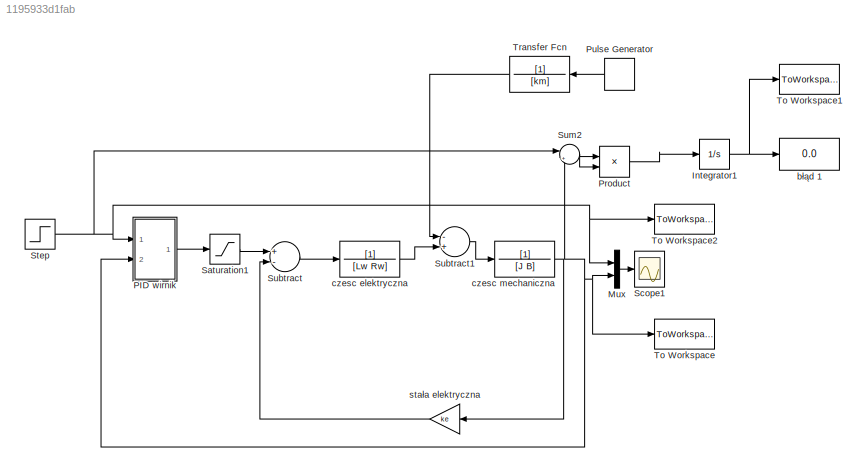
MODEL slx_1195933d1fab
KIND model
CONFIG AbsTol = auto
CONFIG FixedStep = 0.02
CONFIG MaxStep = auto
CONFIG MinStep = auto
CONFIG RelTol = 1e-3
CONFIG SampleTimeConstraint = Unconstrained
CONFIG Solver = ode3
CONFIG SolverMode = Auto
CONFIG SolverName = ode3
CONFIG StartTime = 0.0
CONFIG StopTime = 10
BLOCK [Integrator] Integrator1
  Ports = [1, 1]
BLOCK [Mux] Mux
  DisplayOption = bar
  Inputs = 2
  Ports = [2, 1]
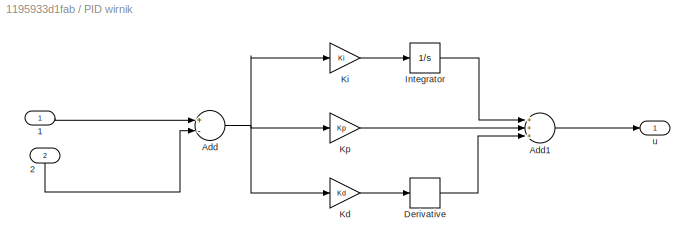
BLOCK [SubSystem] PID wirnik 
  Ports = [2, 1]
  RequestExecContextInheritance = off
BLOCK [Inport] PID wirnik /1 
  IconDisplay = Port number
BLOCK [Inport] PID wirnik /2
  IconDisplay = Port number
  Port = 2
BLOCK [Sum] PID wirnik /Add
  InputSameDT = off
  Inputs = +-
  OutDataTypeStr = Inherit: Inherit via internal rule
  Ports = [2, 1]
  SaturateOnIntegerOverflow = off
BLOCK [Sum] PID wirnik /Add1
  InputSameDT = off
  Inputs = +++
  OutDataTypeStr = Inherit: Inherit via internal rule
  Ports = [3, 1]
  SaturateOnIntegerOverflow = off
BLOCK [Derivative] PID wirnik /Derivative
BLOCK [Integrator] PID wirnik /Integrator
  Ports = [1, 1]
BLOCK [Gain] PID wirnik /Kd
  Gain = Kd
  OutDataTypeStr = Inherit: Inherit via internal rule
  ParamDataTypeStr = Inherit: Inherit via internal rule
  SaturateOnIntegerOverflow = off
BLOCK [Gain] PID wirnik /Ki 
  Gain = Ki
  OutDataTypeStr = Inherit: Inherit via internal rule
  ParamDataTypeStr = Inherit: Inherit via internal rule
  SaturateOnIntegerOverflow = off
BLOCK [Gain] PID wirnik /Kp
  Gain = Kp
  OutDataTypeStr = Inherit: Inherit via internal rule
  ParamDataTypeStr = Inherit: Inherit via internal rule
  SaturateOnIntegerOverflow = off
BLOCK [Outport] PID wirnik /u
  IconDisplay = Port number
BLOCK [Product] Product
  InputSameDT = off
  OutDataTypeStr = Inherit: Inherit via internal rule
  Ports = [2, 1]
  RndMeth = Floor
  SaturateOnIntegerOverflow = off
BLOCK [DiscretePulseGenerator] Pulse Generator
  Amplitude = 0.2
  Ports = [0, 1]
  PulseType = Time based
  PulseWidth = 10
BLOCK [Saturate] Saturation1
  InputPortMap = u0
  LowerLimit = -300
  Ports = [1, 1]
  UpperLimit = 300
  ZeroCross = off
BLOCK [Scope] Scope1
  Floating = off
  NumInputPorts = 1
  Ports = [1]
  SaveName = ScopeData1
BLOCK [Step] Step
  SampleTime = 0.02
  Time = 0
BLOCK [Sum] Subtract
  InputSameDT = off
  Inputs = +-
  OutDataTypeStr = Inherit: Inherit via internal rule
  Ports = [2, 1]
  SaturateOnIntegerOverflow = off
BLOCK [Sum] Subtract1
  InputSameDT = off
  Inputs = -+
  OutDataTypeStr = Inherit: Inherit via internal rule
  Ports = [2, 1]
  SaturateOnIntegerOverflow = off
BLOCK [Sum] Sum2
  IconShape = round
  InputSameDT = off
  Inputs = |+-
  OutDataTypeStr = Inherit: Inherit via internal rule
  Ports = [2, 1]
  SaturateOnIntegerOverflow = off
BLOCK [ToWorkspace] To Workspace
  FixptAsFi = on
  MaxDataPoints = inf
  Ports = [1]
  SampleTime = -1
  Save2DSignal = 3-D array (concatenate along third dimension)
  SaveFormat = Structure With Time
  VariableName = plot1
BLOCK [ToWorkspace] To Workspace1
  FixptAsFi = on
  MaxDataPoints = inf
  Ports = [1]
  SampleTime = -1
  Save2DSignal = 3-D array (concatenate along third dimension)
  VariableName = V1
BLOCK [ToWorkspace] To Workspace2
  FixptAsFi = on
  MaxDataPoints = inf
  Ports = [1]
  SampleTime = -1
  Save2DSignal = 3-D array (concatenate along third dimension)
  SaveFormat = Structure With Time
  VariableName = plot2
BLOCK [TransferFcn] Transfer Fcn
  Denominator = [km]
BLOCK [Display] błąd 1
  Decimation = 1
  Ports = [1]
BLOCK [TransferFcn] czesc elektryczna 
  Denominator = [Lw Rw]
BLOCK [TransferFcn] czesc mechaniczna 
  Denominator = [J B]
BLOCK [Gain] stała elektryczna 
  Gain = ke
  OutDataTypeStr = Inherit: Inherit via internal rule
  ParamDataTypeStr = Inherit: Inherit via internal rule
  SaturateOnIntegerOverflow = off
NET Integrator1:1 -> To Workspace1:1, błąd 1:1
LINE Mux:1 -> Scope1:1
LINE PID wirnik /1 :1 -> PID wirnik /Add:1
LINE PID wirnik /2:1 -> PID wirnik /Add:2
LINE PID wirnik /Add1:1 -> PID wirnik /u:1
NET PID wirnik /Add:1 -> PID wirnik /Kd:1, PID wirnik /Ki :1, PID wirnik /Kp:1
LINE PID wirnik /Derivative:1 -> PID wirnik /Add1:3
LINE PID wirnik /Integrator:1 -> PID wirnik /Add1:1
LINE PID wirnik /Kd:1 -> PID wirnik /Derivative:1
LINE PID wirnik /Ki :1 -> PID wirnik /Integrator:1
LINE PID wirnik /Kp:1 -> PID wirnik /Add1:2
LINE PID wirnik :1 -> Saturation1:1
LINE Product:1 -> Integrator1:1
LINE Pulse Generator:1 -> Transfer Fcn:1
LINE Saturation1:1 -> Subtract:1
NET Step:1 -> Mux:1, PID wirnik :1, Sum2:1, To Workspace2:1
LINE Subtract1:1 -> czesc mechaniczna :1
LINE Subtract:1 -> czesc elektryczna :1
NET Sum2:1 -> Product:1, Product:2
LINE Transfer Fcn:1 -> Subtract1:1
LINE czesc elektryczna :1 -> Subtract1:2
NET czesc mechaniczna :1 -> Mux:2, PID wirnik :2, Sum2:2, To Workspace:1, stała elektryczna :1
LINE stała elektryczna :1 -> Subtract:2
note: NET lines group one-source signal fan-out (src -> all destinations, sorted); 1:1 wires keep LINE
